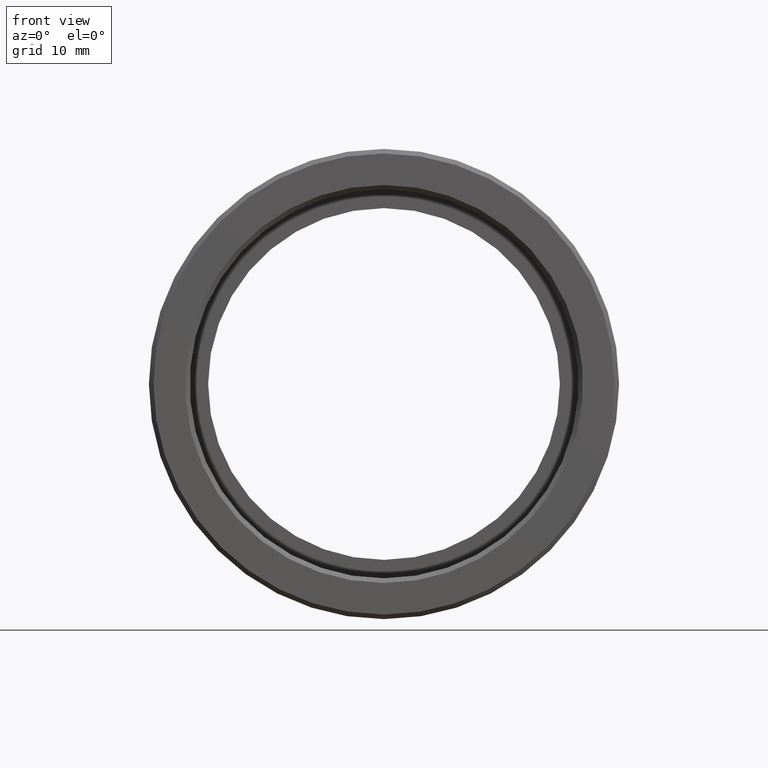
[diagram: clean part render]
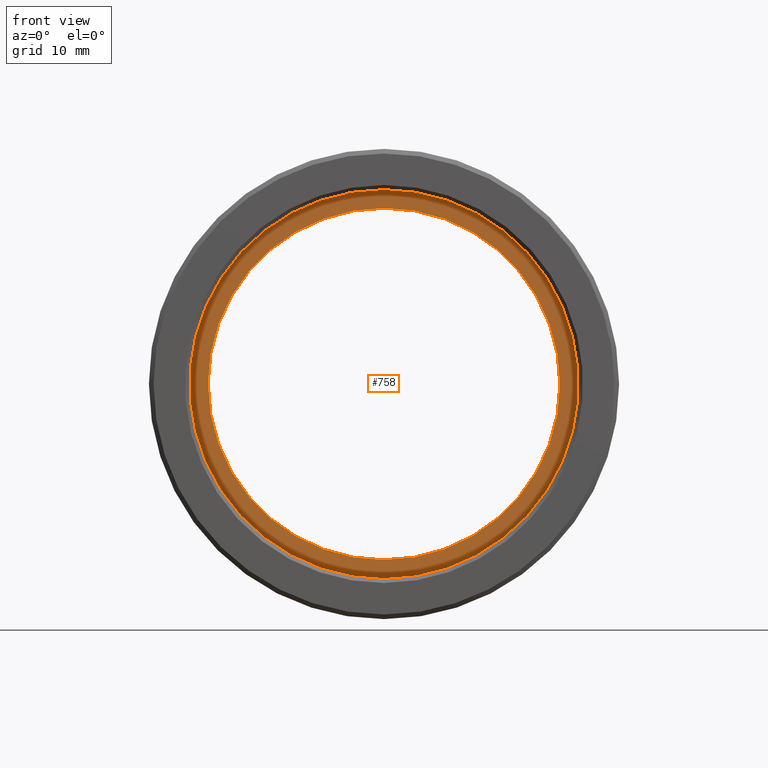
[diagram: same view with one face highlighted and labeled with its STEP entity id]
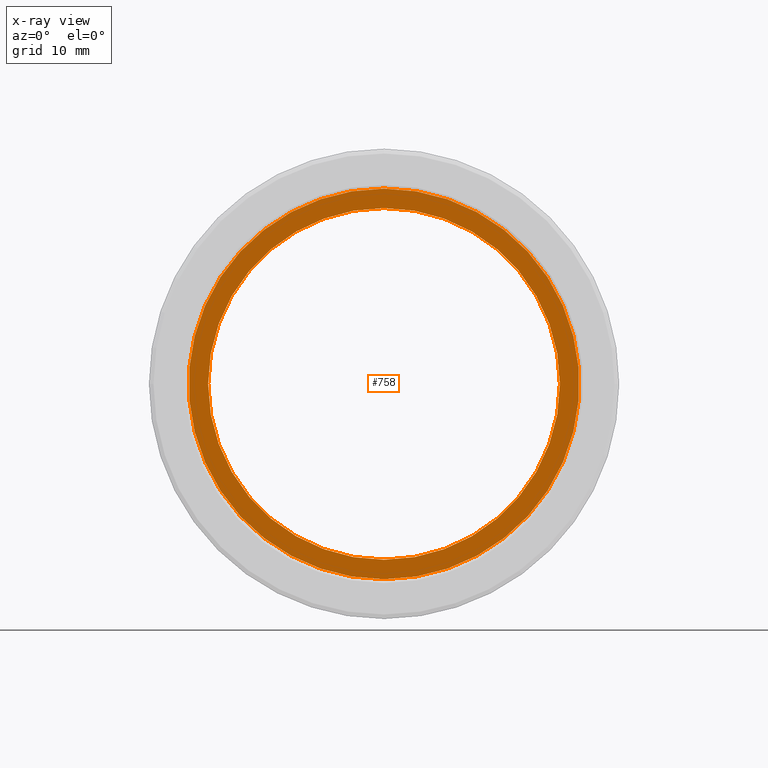
[diagram: x-ray of the same camera — body ghosted, the highlighted face saturated]
A machine part, front view. The second image highlights one B-rep face of the part: STEP entity #758.
The next image is the same camera in x-ray: the body ghosted, the highlighted face saturated — about 0% of this face is hidden behind the body in this view.
In plain terms, the highlighted planar face has unit normal (-0, 1, 0).
Its self-contained STEP definition (entity closure, byte-faithful):
#20 = DIRECTION ( 'NONE',  ( 0.0000000000000000000, 0.0000000000000000000, 1.000000000000000000 ) ) ;
#29 = ORIENTED_EDGE ( 'NONE', *, *, #513, .F. ) ;
#37 = EDGE_CURVE ( 'NONE', #147, #321, #287, .T. ) ;
#70 = DIRECTION ( 'NONE',  ( 0.0000000000000000000, 0.0000000000000000000, 1.000000000000000000 ) ) ;
#88 = EDGE_LOOP ( 'NONE', ( #477, #363 ) ) ;
#147 = VERTEX_POINT ( 'NONE', #546 ) ;
#155 = CARTESIAN_POINT ( 'NONE',  ( 21.10000000000000900, -0.3571458254331058000, 0.0000000000000000000 ) ) ;
#200 = DIRECTION ( 'NONE',  ( -0.0000000000000000000, 1.000000000000000000, -0.0000000000000000000 ) ) ;
#220 = CIRCLE ( 'NONE', #782, 21.10000000000000900 ) ;
#233 = DIRECTION ( 'NONE',  ( -0.0000000000000000000, 1.000000000000000000, -0.0000000000000000000 ) ) ;
#261 = VERTEX_POINT ( 'NONE', #704 ) ;
#287 = CIRCLE ( 'NONE', #466, 19.00000000000000700 ) ;
#321 = VERTEX_POINT ( 'NONE', #496 ) ;
#331 = FACE_BOUND ( 'NONE', #88, .T. ) ;
#350 = FACE_OUTER_BOUND ( 'NONE', #829, .T. ) ;
#363 = ORIENTED_EDGE ( 'NONE', *, *, #37, .T. ) ;
#378 = CIRCLE ( 'NONE', #437, 21.10000000000000900 ) ;
#391 = CIRCLE ( 'NONE', #524, 19.00000000000000700 ) ;
#398 = EDGE_CURVE ( 'NONE', #261, #754, #220, .T. ) ;
#435 = DIRECTION ( 'NONE',  ( 0.0000000000000000000, 0.0000000000000000000, 1.000000000000000000 ) ) ;
#437 = AXIS2_PLACEMENT_3D ( 'NONE', #534, #200, #824 ) ;
#466 = AXIS2_PLACEMENT_3D ( 'NONE', #811, #525, #814 ) ;
#477 = ORIENTED_EDGE ( 'NONE', *, *, #694, .T. ) ;
#483 = DIRECTION ( 'NONE',  ( -0.0000000000000000000, 1.000000000000000000, -0.0000000000000000000 ) ) ;
#496 = CARTESIAN_POINT ( 'NONE',  ( 0.0000000000000000000, -0.3571458254331069700, 19.00000000000000700 ) ) ;
#513 = EDGE_CURVE ( 'NONE', #754, #261, #378, .T. ) ;
#524 = AXIS2_PLACEMENT_3D ( 'NONE', #568, #233, #435 ) ;
#525 = DIRECTION ( 'NONE',  ( -0.0000000000000000000, 1.000000000000000000, -0.0000000000000000000 ) ) ;
#534 = CARTESIAN_POINT ( 'NONE',  ( 0.0000000000000000000, -0.3571458254331069700, 0.0000000000000000000 ) ) ;
#546 = CARTESIAN_POINT ( 'NONE',  ( 2.326828918379971800E-015, -0.3571458254331069700, -19.00000000000000700 ) ) ;
#565 = CARTESIAN_POINT ( 'NONE',  ( 0.0000000000000000000, -0.3571458254331069700, 0.0000000000000000000 ) ) ;
#568 = CARTESIAN_POINT ( 'NONE',  ( 0.0000000000000000000, -0.3571458254331069700, 0.0000000000000000000 ) ) ;
#574 = DIRECTION ( 'NONE',  ( -0.0000000000000000000, 1.000000000000000000, 0.0000000000000000000 ) ) ;
#582 = CARTESIAN_POINT ( 'NONE',  ( 0.0000000000000000000, -0.3571458254331069700, 21.10000000000000900 ) ) ;
#612 = ORIENTED_EDGE ( 'NONE', *, *, #398, .F. ) ;
#694 = EDGE_CURVE ( 'NONE', #321, #147, #391, .T. ) ;
#704 = CARTESIAN_POINT ( 'NONE',  ( 2.584004746200916200E-015, -0.3571458254331069700, -21.10000000000000900 ) ) ;
#754 = VERTEX_POINT ( 'NONE', #582 ) ;
#758 = ADVANCED_FACE ( 'NONE', ( #350, #331 ), #844, .F. ) ;
#782 = AXIS2_PLACEMENT_3D ( 'NONE', #565, #483, #70 ) ;
#811 = CARTESIAN_POINT ( 'NONE',  ( 0.0000000000000000000, -0.3571458254331069700, 0.0000000000000000000 ) ) ;
#814 = DIRECTION ( 'NONE',  ( 0.0000000000000000000, 0.0000000000000000000, 1.000000000000000000 ) ) ;
#824 = DIRECTION ( 'NONE',  ( 0.0000000000000000000, 0.0000000000000000000, 1.000000000000000000 ) ) ;
#829 = EDGE_LOOP ( 'NONE', ( #29, #612 ) ) ;
#844 = PLANE ( 'NONE',  #877 ) ;
#877 = AXIS2_PLACEMENT_3D ( 'NONE', #155, #574, #20 ) ;